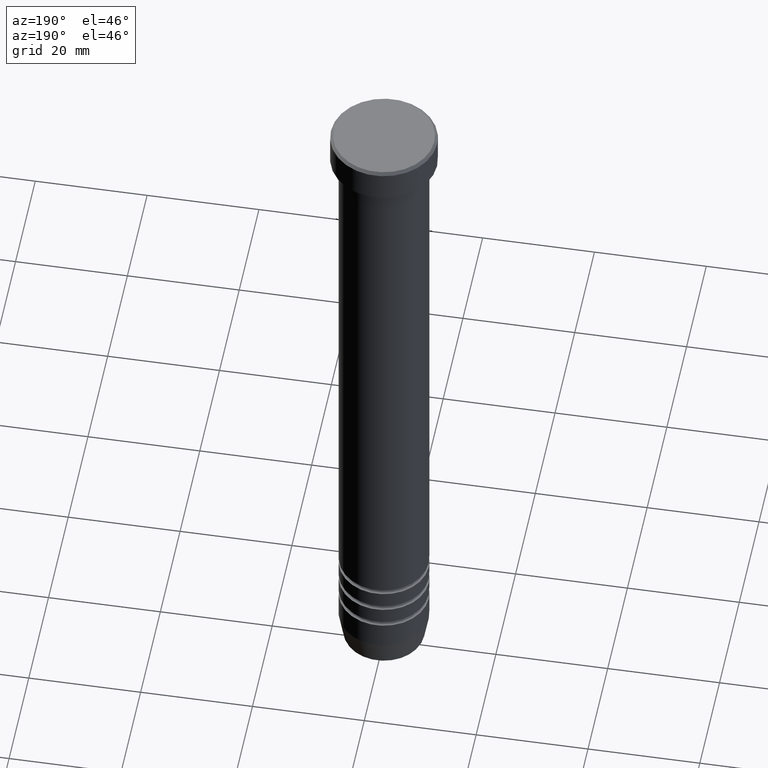
[diagram: clean part render]
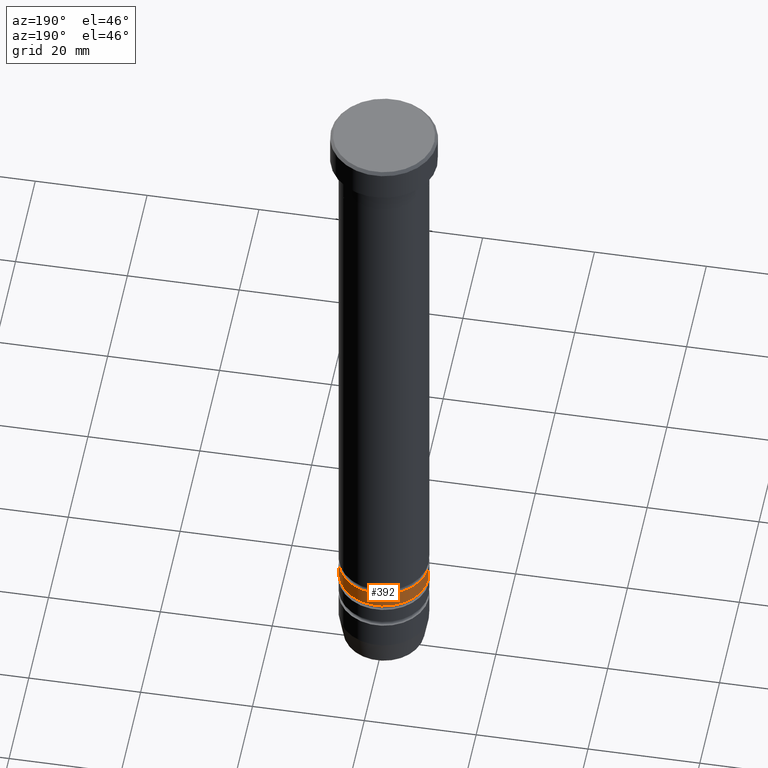
[diagram: same view with one face highlighted and labeled with its STEP entity id]
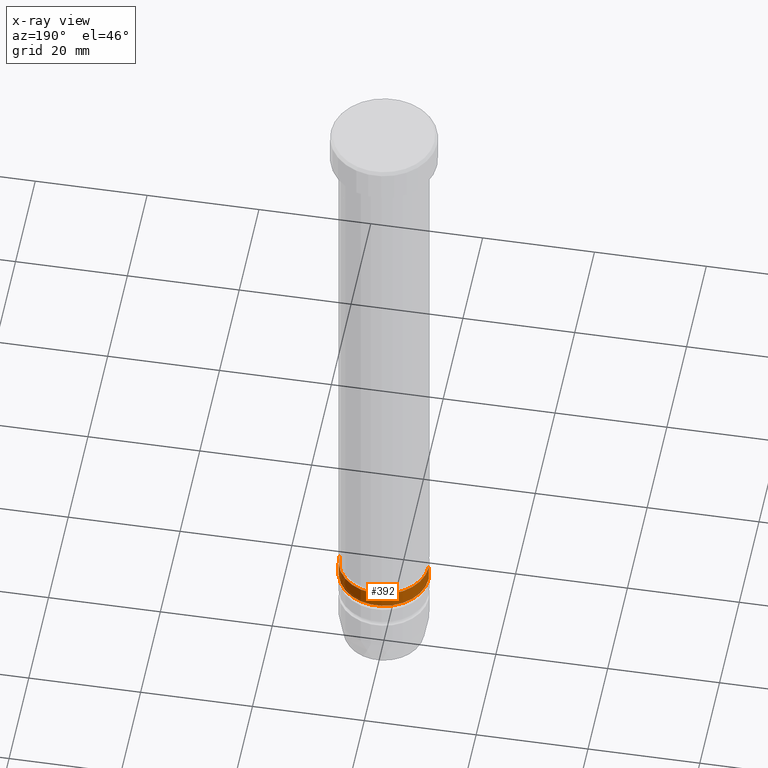
[diagram: x-ray of the same camera — body ghosted, the highlighted face saturated]
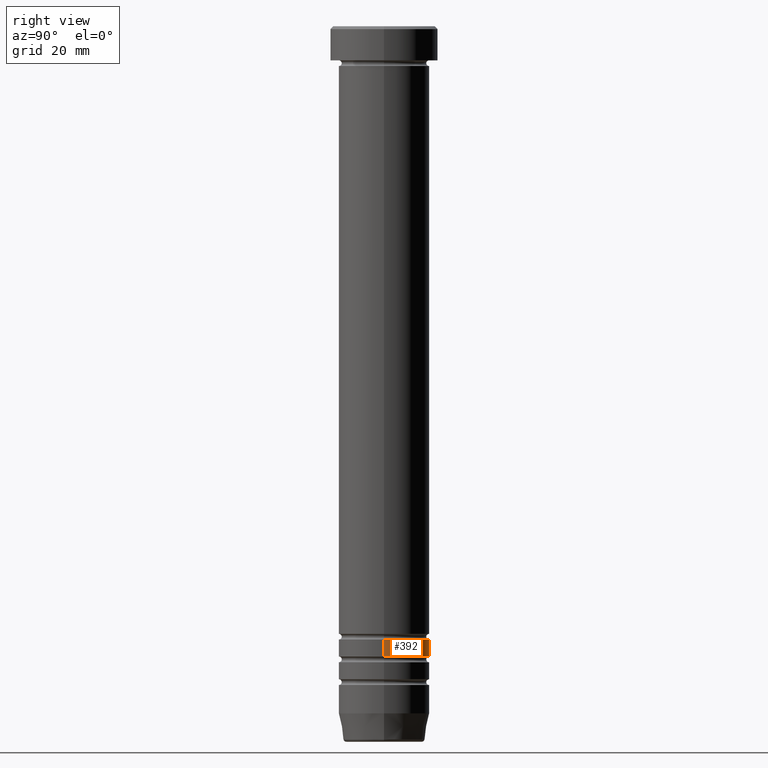
[diagram: same view with one face highlighted and labeled with its STEP entity id]
A machine part, auxiliary view. The second image highlights one B-rep face of the part: STEP entity #392.
The next image is the same camera in x-ray: the body ghosted, the highlighted face saturated — about 0% of this face is hidden behind the body in this view.
A second angle (right view) of the same face is appended — the face is thin or edge-on in the first view.
In plain terms, the highlighted cylindrical surface (partial cylindrical patch) has radius 8 mm, axis along (-0, -0, 1).
Its self-contained STEP definition (entity closure, byte-faithful):
#11 = EDGE_CURVE ( 'NONE', #1036, #937, #948, .T. ) ;
#17 = DIRECTION ( 'NONE',  ( -0.000000000000000000, -0.000000000000000000, 1.000000000000000000 ) ) ;
#54 = CARTESIAN_POINT ( 'NONE',  ( 7.999999999999996447, 0.000000000000000000, -111.0000000000000142 ) ) ;
#97 = DIRECTION ( 'NONE',  ( -0.000000000000000000, -0.000000000000000000, 1.000000000000000000 ) ) ;
#103 = CIRCLE ( 'NONE', #801, 7.999999999999998224 ) ;
#193 = ORIENTED_EDGE ( 'NONE', *, *, #11, .T. ) ;
#203 = DIRECTION ( 'NONE',  ( -0.000000000000000000, -0.000000000000000000, 1.000000000000000000 ) ) ;
#223 = CIRCLE ( 'NONE', #870, 7.999999999999996447 ) ;
#235 = DIRECTION ( 'NONE',  ( -0.000000000000000000, -0.000000000000000000, 1.000000000000000000 ) ) ;
#272 = LINE ( 'NONE', #455, #1031 ) ;
#297 = CARTESIAN_POINT ( 'NONE',  ( 7.999999999999998224, 0.000000000000000000, -108.0000000000000142 ) ) ;
#343 = ORIENTED_EDGE ( 'NONE', *, *, #732, .F. ) ;
#392 = ADVANCED_FACE ( 'NONE', ( #885 ), #1148, .T. ) ;
#419 = EDGE_CURVE ( 'NONE', #846, #1036, #223, .T. ) ;
#422 = CARTESIAN_POINT ( 'NONE',  ( -7.999999999999996447, 9.797174393178821713E-16, 0.000000000000000000 ) ) ;
#424 = DIRECTION ( 'NONE',  ( -0.000000000000000000, -0.000000000000000000, 1.000000000000000000 ) ) ;
#455 = CARTESIAN_POINT ( 'NONE',  ( 7.999999999999996447, 0.000000000000000000, 0.000000000000000000 ) ) ;
#515 = VECTOR ( 'NONE', #235, 1000.000000000000000 ) ;
#530 = CARTESIAN_POINT ( 'NONE',  ( 0.000000000000000000, 0.000000000000000000, 0.000000000000000000 ) ) ;
#612 = CARTESIAN_POINT ( 'NONE',  ( 0.000000000000000000, 0.000000000000000000, -111.0000000000000142 ) ) ;
#625 = DIRECTION ( 'NONE',  ( 1.000000000000000000, 0.000000000000000000, 0.000000000000000000 ) ) ;
#710 = VERTEX_POINT ( 'NONE', #297 ) ;
#732 = EDGE_CURVE ( 'NONE', #710, #937, #103, .T. ) ;
#738 = CARTESIAN_POINT ( 'NONE',  ( -7.999999999999996447, 9.797174393178821713E-16, -111.0000000000000142 ) ) ;
#751 = CARTESIAN_POINT ( 'NONE',  ( -7.999999999999998224, 9.797174393178823685E-16, -108.0000000000000142 ) ) ;
#753 = EDGE_CURVE ( 'NONE', #846, #710, #272, .T. ) ;
#801 = AXIS2_PLACEMENT_3D ( 'NONE', #1076, #203, #1100 ) ;
#846 = VERTEX_POINT ( 'NONE', #54 ) ;
#870 = AXIS2_PLACEMENT_3D ( 'NONE', #612, #97, #625 ) ;
#876 = ORIENTED_EDGE ( 'NONE', *, *, #419, .T. ) ;
#885 = FACE_OUTER_BOUND ( 'NONE', #930, .T. ) ;
#930 = EDGE_LOOP ( 'NONE', ( #876, #193, #343, #933 ) ) ;
#933 = ORIENTED_EDGE ( 'NONE', *, *, #753, .F. ) ;
#937 = VERTEX_POINT ( 'NONE', #751 ) ;
#948 = LINE ( 'NONE', #422, #515 ) ;
#1031 = VECTOR ( 'NONE', #17, 1000.000000000000000 ) ;
#1036 = VERTEX_POINT ( 'NONE', #738 ) ;
#1055 = DIRECTION ( 'NONE',  ( 1.000000000000000000, 0.000000000000000000, 0.000000000000000000 ) ) ;
#1064 = AXIS2_PLACEMENT_3D ( 'NONE', #530, #424, #1055 ) ;
#1076 = CARTESIAN_POINT ( 'NONE',  ( 0.000000000000000000, 0.000000000000000000, -108.0000000000000142 ) ) ;
#1100 = DIRECTION ( 'NONE',  ( 1.000000000000000000, 0.000000000000000000, 0.000000000000000000 ) ) ;
#1148 = CYLINDRICAL_SURFACE ( 'NONE', #1064, 7.999999999999996447 ) ;